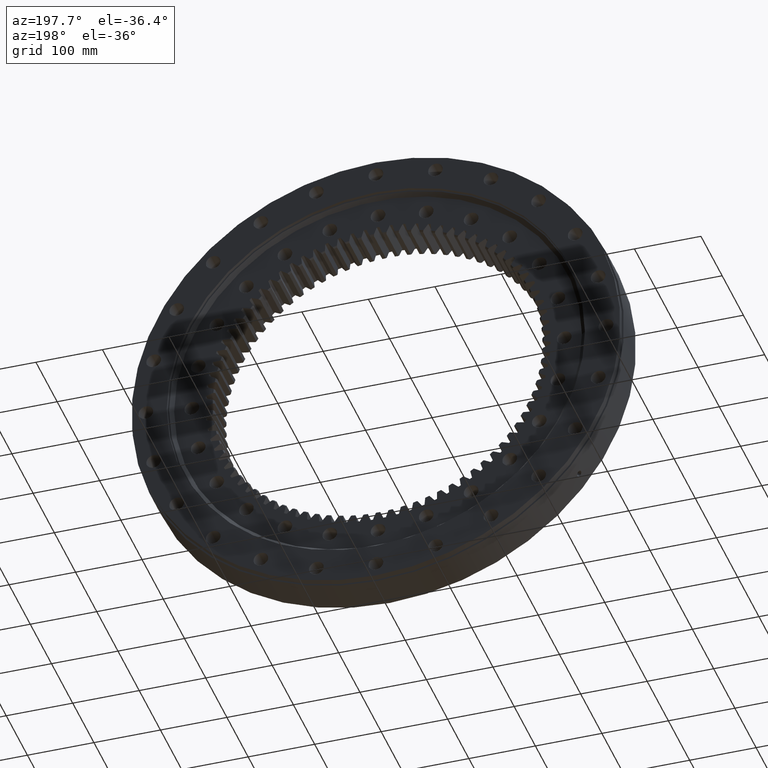
[diagram: clean part render]
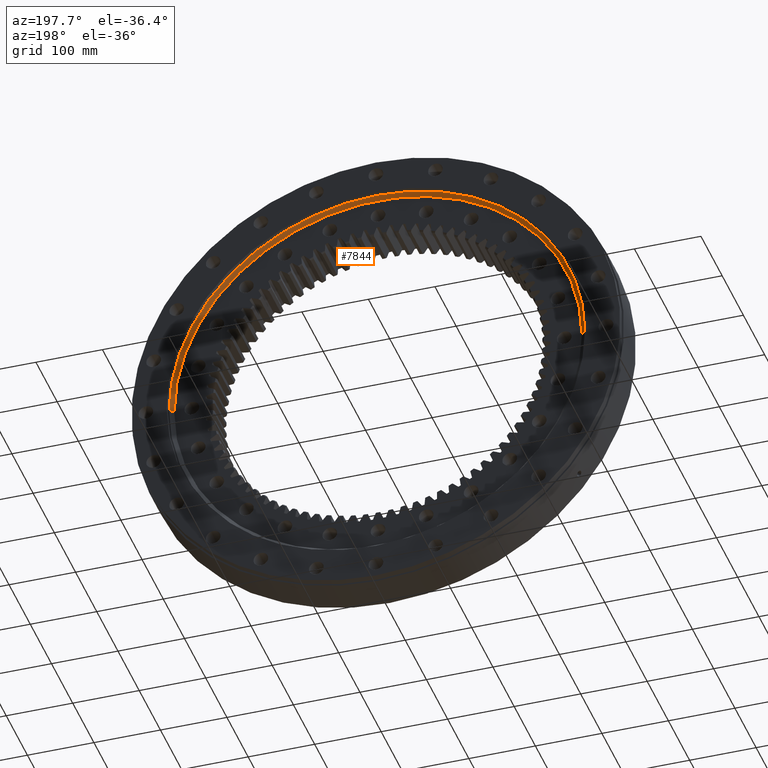
[diagram: same view with one face highlighted and labeled with its STEP entity id]
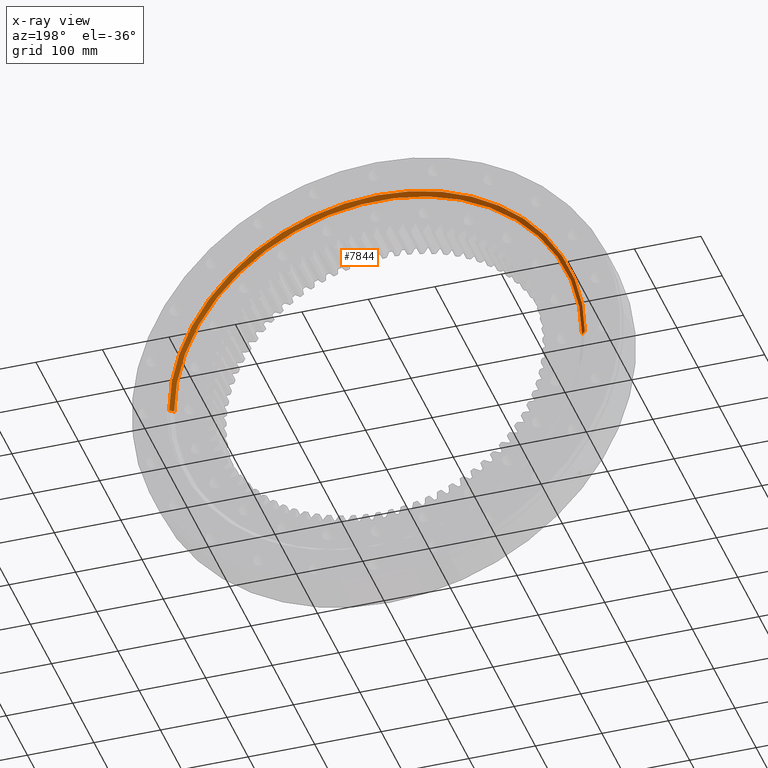
[diagram: x-ray of the same camera — body ghosted, the highlighted face saturated]
A machine part, auxiliary view. The second image highlights one B-rep face of the part: STEP entity #7844.
The next image is the same camera in x-ray: the body ghosted, the highlighted face saturated — about 0% of this face is hidden behind the body in this view.
In plain terms, the highlighted conical surface has half-angle 49.914 deg.
Its self-contained STEP definition (entity closure, byte-faithful):
#331 = CONICAL_SURFACE ( 'NONE', #22714, 312.5875000000000300, 0.8711601305813037000 ) ;
#620 = FACE_OUTER_BOUND ( 'NONE', #3986, .T. ) ;
#3719 = EDGE_CURVE ( 'NONE', #7497, #5461, #8244, .T. ) ;
#3986 = EDGE_LOOP ( 'NONE', ( #21878, #21985, #22125, #21408 ) ) ;
#4595 = CARTESIAN_POINT ( 'NONE',  ( 312.5875000000000300, 33.04999999999994000, 3.828092813284733100E-014 ) ) ;
#4804 = CIRCLE ( 'NONE', #14139, 312.5875000000000300 ) ;
#5198 = DIRECTION ( 'NONE',  ( -1.000000000000000000, 1.775859598712610900E-016, 0.0000000000000000000 ) ) ;
#5233 = DIRECTION ( 'NONE',  ( 1.836909530733565900E-016, 1.000000000000000000, -0.0000000000000000000 ) ) ;
#5257 = CARTESIAN_POINT ( 'NONE',  ( -2.292022439949310600E-015, 33.04999999999999700, 0.0000000000000000000 ) ) ;
#5461 = VERTEX_POINT ( 'NONE', #4595 ) ;
#5479 = EDGE_CURVE ( 'NONE', #6275, #5461, #4804, .T. ) ;
#5759 = VERTEX_POINT ( 'NONE', #16439 ) ;
#6215 = EDGE_CURVE ( 'NONE', #5759, #7497, #18255, .T. ) ;
#6275 = VERTEX_POINT ( 'NONE', #10325 ) ;
#7131 = CARTESIAN_POINT ( 'NONE',  ( 312.5875000000000300, 33.04999999999994000, 3.828092813284733100E-014 ) ) ;
#7497 = VERTEX_POINT ( 'NONE', #19602 ) ;
#7844 = ADVANCED_FACE ( 'NONE', ( #620 ), #331, .F. ) ;
#8244 = LINE ( 'NONE', #7131, #16192 ) ;
#10263 = EDGE_CURVE ( 'NONE', #5759, #6275, #21054, .T. ) ;
#10325 = CARTESIAN_POINT ( 'NONE',  ( -312.5875000000000300, 33.05000000000005400, 0.0000000000000000000 ) ) ;
#10341 = AXIS2_PLACEMENT_3D ( 'NONE', #12061, #12952, #13293 ) ;
#11718 = DIRECTION ( 'NONE',  ( 0.7650765054985531100, 0.6439393921279567000, 9.369484935616451800E-017 ) ) ;
#12061 = CARTESIAN_POINT ( 'NONE',  ( -3.219661752969773800E-015, 27.99999999999992900, 0.0000000000000000000 ) ) ;
#12952 = DIRECTION ( 'NONE',  ( 1.836909530733565900E-016, 1.000000000000000000, -0.0000000000000000000 ) ) ;
#13293 = DIRECTION ( 'NONE',  ( -1.000000000000000000, 1.810613649651659800E-016, 0.0000000000000000000 ) ) ;
#14139 = AXIS2_PLACEMENT_3D ( 'NONE', #5257, #5233, #5198 ) ;
#15318 = DIRECTION ( 'NONE',  ( -0.7650765054985528800, 0.6439393921279569200, 0.0000000000000000000 ) ) ;
#15590 = CARTESIAN_POINT ( 'NONE',  ( -312.5875000000000300, 33.05000000000005400, 0.0000000000000000000 ) ) ;
#16192 = VECTOR ( 'NONE', #11718, 1000.000000000000100 ) ;
#16439 = CARTESIAN_POINT ( 'NONE',  ( -306.5875000000000300, 27.99999999999998200, 0.0000000000000000000 ) ) ;
#18255 = CIRCLE ( 'NONE', #10341, 306.5875000000000300 ) ;
#19602 = CARTESIAN_POINT ( 'NONE',  ( 306.5875000000000300, 27.99999999999987200, 3.791353409310311900E-014 ) ) ;
#20991 = VECTOR ( 'NONE', #15318, 1000.000000000000100 ) ;
#21054 = LINE ( 'NONE', #15590, #20991 ) ;
#21408 = ORIENTED_EDGE ( 'NONE', *, *, #5479, .T. ) ;
#21878 = ORIENTED_EDGE ( 'NONE', *, *, #3719, .F. ) ;
#21985 = ORIENTED_EDGE ( 'NONE', *, *, #6215, .F. ) ;
#22125 = ORIENTED_EDGE ( 'NONE', *, *, #10263, .T. ) ;
#22530 = CARTESIAN_POINT ( 'NONE',  ( -2.292022439949310600E-015, 33.04999999999999700, 0.0000000000000000000 ) ) ;
#22573 = DIRECTION ( 'NONE',  ( -1.000000000000000000, 1.775859598712610900E-016, 0.0000000000000000000 ) ) ;
#22672 = DIRECTION ( 'NONE',  ( 1.836909530733565900E-016, 1.000000000000000000, -0.0000000000000000000 ) ) ;
#22714 = AXIS2_PLACEMENT_3D ( 'NONE', #22530, #22672, #22573 ) ;